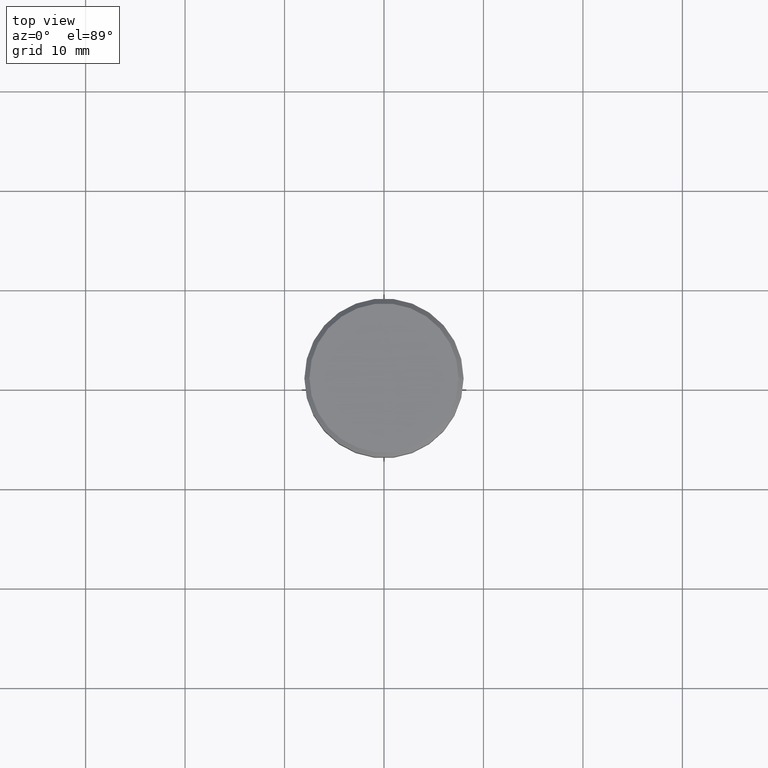
[diagram: clean part render]
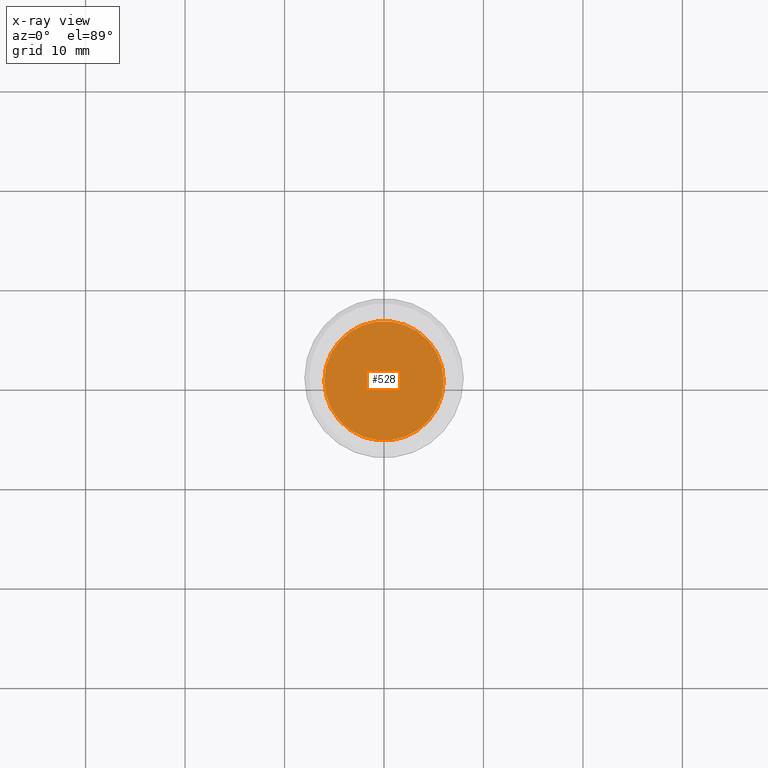
[diagram: x-ray — body ghosted, one internal face saturated and labeled with its STEP entity id]
A machine part, top view, then the same camera in x-ray: the body is ghosted and one INTERNAL B-rep face — a face not visible from any outside direction — is saturated and labeled: STEP entity #528.
In plain terms, the highlighted planar face has unit normal (0, 0, -1).
Its self-contained STEP definition (entity closure, byte-faithful):
#8 = VERTEX_POINT ( 'NONE', #77 ) ;
#77 = CARTESIAN_POINT ( 'NONE',  ( 6.000000000000000000, 0.000000000000000000, -17.50000000000000000 ) ) ;
#160 = PLANE ( 'NONE',  #700 ) ;
#164 = FACE_OUTER_BOUND ( 'NONE', #552, .T. ) ;
#175 = ORIENTED_EDGE ( 'NONE', *, *, #1059, .T. ) ;
#178 = DIRECTION ( 'NONE',  ( 1.000000000000000000, 0.000000000000000000, 0.000000000000000000 ) ) ;
#300 = DIRECTION ( 'NONE',  ( 1.000000000000000000, 0.000000000000000000, 0.000000000000000000 ) ) ;
#370 = CIRCLE ( 'NONE', #615, 6.000000000000000000 ) ;
#527 = EDGE_CURVE ( 'NONE', #8, #948, #370, .T. ) ;
#528 = ADVANCED_FACE ( 'NONE', ( #164 ), #160, .F. ) ;
#532 = ORIENTED_EDGE ( 'NONE', *, *, #527, .T. ) ;
#552 = EDGE_LOOP ( 'NONE', ( #532, #175 ) ) ;
#615 = AXIS2_PLACEMENT_3D ( 'NONE', #705, #1034, #300 ) ;
#682 = CARTESIAN_POINT ( 'NONE',  ( 0.000000000000000000, 0.000000000000000000, -17.50000000000000000 ) ) ;
#700 = AXIS2_PLACEMENT_3D ( 'NONE', #832, #741, #1060 ) ;
#705 = CARTESIAN_POINT ( 'NONE',  ( 0.000000000000000000, 0.000000000000000000, -17.50000000000000000 ) ) ;
#741 = DIRECTION ( 'NONE',  ( 0.000000000000000000, 0.000000000000000000, -1.000000000000000000 ) ) ;
#807 = CARTESIAN_POINT ( 'NONE',  ( -6.000000000000000888, 7.347880794884120722E-16, -17.50000000000000000 ) ) ;
#832 = CARTESIAN_POINT ( 'NONE',  ( 0.000000000000000000, -4.336808689942017736E-15, -17.50000000000000000 ) ) ;
#916 = DIRECTION ( 'NONE',  ( -0.000000000000000000, -0.000000000000000000, 1.000000000000000000 ) ) ;
#928 = CIRCLE ( 'NONE', #1030, 6.000000000000000000 ) ;
#948 = VERTEX_POINT ( 'NONE', #807 ) ;
#1030 = AXIS2_PLACEMENT_3D ( 'NONE', #682, #916, #178 ) ;
#1034 = DIRECTION ( 'NONE',  ( -0.000000000000000000, -0.000000000000000000, 1.000000000000000000 ) ) ;
#1059 = EDGE_CURVE ( 'NONE', #948, #8, #928, .T. ) ;
#1060 = DIRECTION ( 'NONE',  ( -1.000000000000000000, 0.000000000000000000, -0.000000000000000000 ) ) ;